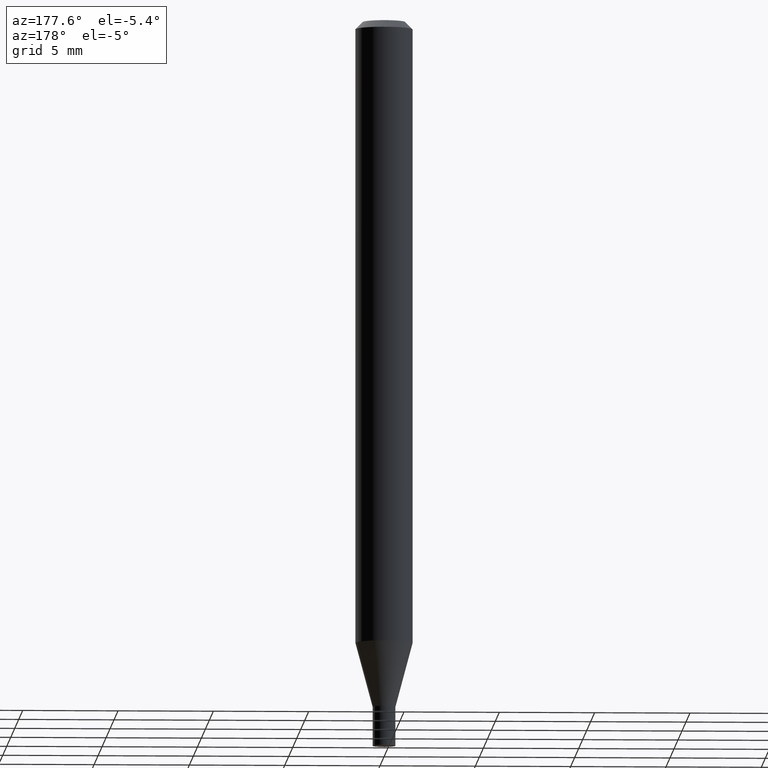
[diagram: clean part render]
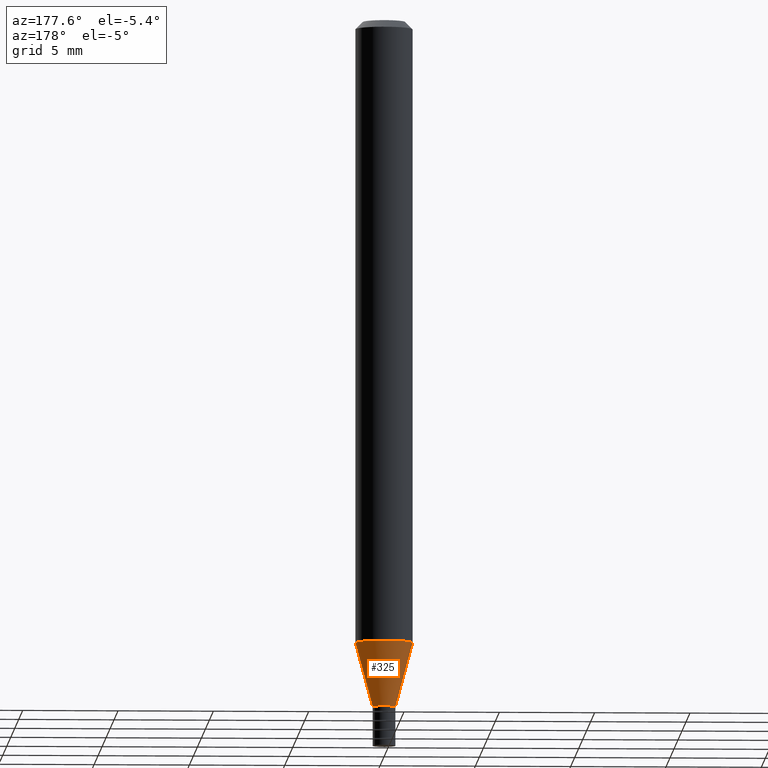
[diagram: same view with one face highlighted and labeled with its STEP entity id]
A machine part, auxiliary view. The second image highlights one B-rep face of the part: STEP entity #325.
In plain terms, the highlighted conical surface has half-angle 15 deg.
Its self-contained STEP definition (entity closure, byte-faithful):
#9 = DIRECTION ( 'NONE',  ( 0.2588190451025211281, 1.565188264969622954E-15, 0.9659258262890679791 ) ) ;
#14 = ORIENTED_EDGE ( 'NONE', *, *, #348, .F. ) ;
#30 = ORIENTED_EDGE ( 'NONE', *, *, #87, .T. ) ;
#43 = CARTESIAN_POINT ( 'NONE',  ( 0.02360000000000019374, -5.119209939011821380E-15, -1.419000000000000039 ) ) ;
#64 = FACE_OUTER_BOUND ( 'NONE', #173, .T. ) ;
#72 = VECTOR ( 'NONE', #332, 39.37007874015748854 ) ;
#87 = EDGE_CURVE ( 'NONE', #405, #421, #289, .T. ) ;
#89 = CARTESIAN_POINT ( 'NONE',  ( 3.470120235976709172E-29, -4.954412019818423555E-15, -1.419000000000000039 ) ) ;
#112 = CARTESIAN_POINT ( 'NONE',  ( 0.02360000000000019374, -5.119209939011821380E-15, -1.419000000000000039 ) ) ;
#115 = ORIENTED_EDGE ( 'NONE', *, *, #193, .F. ) ;
#124 = DIRECTION ( 'NONE',  ( -2.445468806185136597E-29, 3.491481338843145583E-15, 1.000000000000000000 ) ) ;
#142 = EDGE_CURVE ( 'NONE', #421, #192, #436, .T. ) ;
#146 = CARTESIAN_POINT ( 'NONE',  ( -0.05904999999999999832, -4.072909359506036864E-15, -1.286698798871684257 ) ) ;
#155 = CONICAL_SURFACE ( 'NONE', #160, 0.02360000000000019374, 0.2617993877991498519 ) ;
#160 = AXIS2_PLACEMENT_3D ( 'NONE', #346, #315, #282 ) ;
#173 = EDGE_LOOP ( 'NONE', ( #30, #448, #115, #14 ) ) ;
#177 = CARTESIAN_POINT ( 'NONE',  ( -0.02360000000000019374, -4.786723934179038657E-15, -1.419000000000000039 ) ) ;
#185 = CIRCLE ( 'NONE', #266, 0.05904999999999999832 ) ;
#192 = VERTEX_POINT ( 'NONE', #146 ) ;
#193 = EDGE_CURVE ( 'NONE', #280, #192, #185, .T. ) ;
#224 = CARTESIAN_POINT ( 'NONE',  ( 0.05904999999999999832, -4.904828791089749700E-15, -1.286698798871684257 ) ) ;
#266 = AXIS2_PLACEMENT_3D ( 'NONE', #377, #124, #295 ) ;
#280 = VERTEX_POINT ( 'NONE', #224 ) ;
#282 = DIRECTION ( 'NONE',  ( 1.000000000000000000, -6.982962677686284065E-15, 0.000000000000000000 ) ) ;
#289 = CIRCLE ( 'NONE', #336, 0.02360000000000019374 ) ;
#295 = DIRECTION ( 'NONE',  ( 1.000000000000000000, -6.982962677686273021E-15, 0.000000000000000000 ) ) ;
#315 = DIRECTION ( 'NONE',  ( -2.445468806185136597E-29, 3.491481338843145583E-15, 1.000000000000000000 ) ) ;
#325 = ADVANCED_FACE ( 'NONE', ( #64 ), #155, .T. ) ;
#327 = DIRECTION ( 'NONE',  ( 1.000000000000000000, -6.982962677686284065E-15, 0.000000000000000000 ) ) ;
#332 = DIRECTION ( 'NONE',  ( -0.2588190451025211281, 5.211531920934547886E-15, 0.9659258262890679791 ) ) ;
#336 = AXIS2_PLACEMENT_3D ( 'NONE', #89, #361, #327 ) ;
#346 = CARTESIAN_POINT ( 'NONE',  ( 3.470120235976709172E-29, -4.954412019818423555E-15, -1.419000000000000039 ) ) ;
#348 = EDGE_CURVE ( 'NONE', #405, #280, #466, .T. ) ;
#353 = CARTESIAN_POINT ( 'NONE',  ( -0.02360000000000019374, -4.429816646842537366E-15, -1.419000000000000039 ) ) ;
#361 = DIRECTION ( 'NONE',  ( -2.445468806185136597E-29, 3.491481338843145583E-15, 1.000000000000000000 ) ) ;
#377 = CARTESIAN_POINT ( 'NONE',  ( 3.146581775596586990E-29, -4.492484844972376357E-15, -1.286698798871684257 ) ) ;
#405 = VERTEX_POINT ( 'NONE', #43 ) ;
#421 = VERTEX_POINT ( 'NONE', #353 ) ;
#428 = VECTOR ( 'NONE', #9, 39.37007874015748854 ) ;
#436 = LINE ( 'NONE', #177, #72 ) ;
#448 = ORIENTED_EDGE ( 'NONE', *, *, #142, .T. ) ;
#466 = LINE ( 'NONE', #112, #428 ) ;